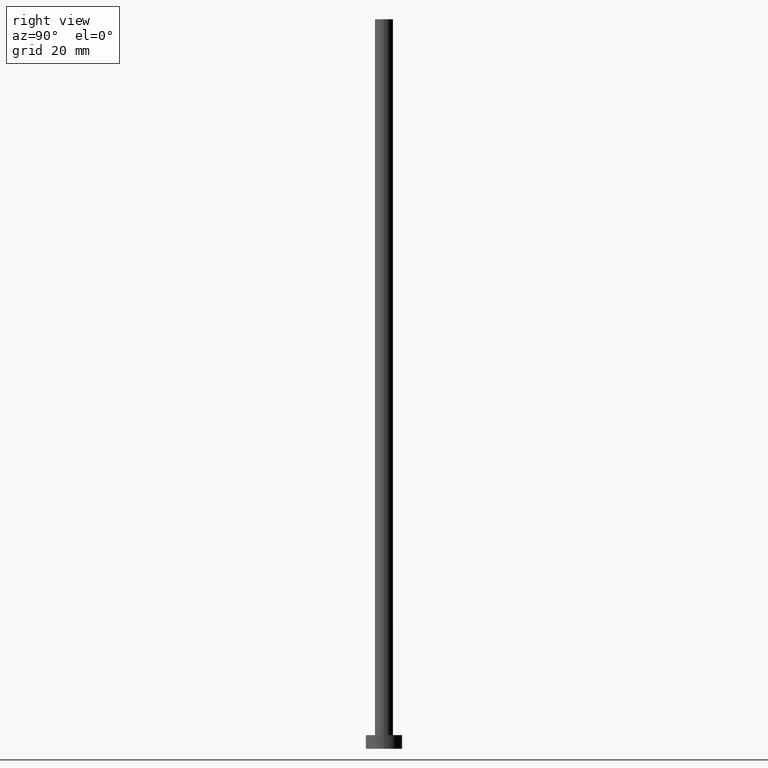
[diagram: clean part render]
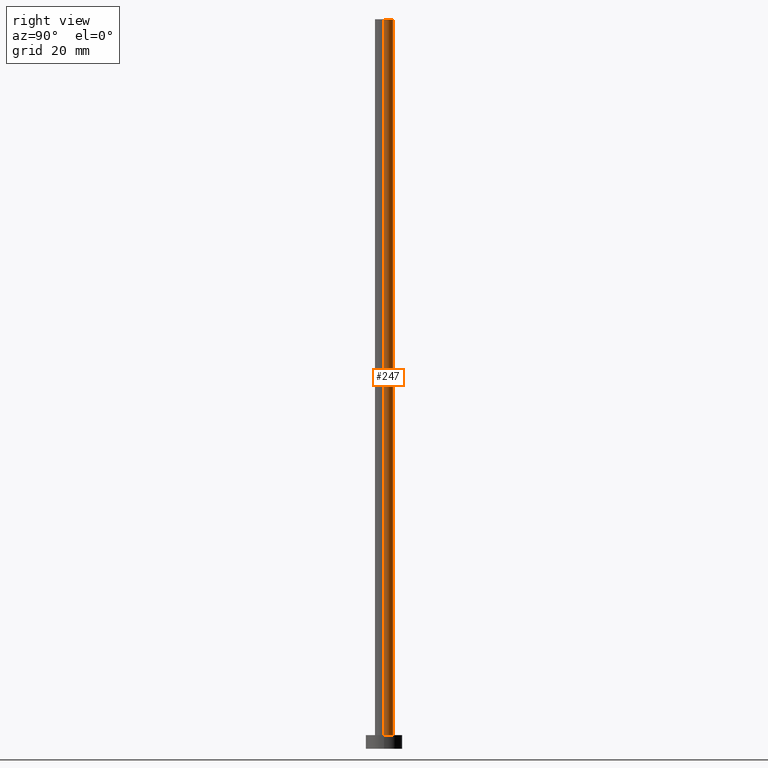
[diagram: same view with one face highlighted and labeled with its STEP entity id]
A machine part, right view. The second image highlights one B-rep face of the part: STEP entity #247.
In plain terms, the highlighted cylindrical surface (edge-blend (fillet) strip) has radius 2 mm, axis along (-0, -0, -1).
Its self-contained STEP definition (entity closure, byte-faithful):
#2 = AXIS2_PLACEMENT_3D ( 'NONE', #165, #85, #160 ) ;
#4 = AXIS2_PLACEMENT_3D ( 'NONE', #68, #56, #157 ) ;
#6 = ORIENTED_EDGE ( 'NONE', *, *, #110, .F. ) ;
#7 = DIRECTION ( 'NONE',  ( 1.000000000000000000, 0.000000000000000000, 0.000000000000000000 ) ) ;
#18 = VERTEX_POINT ( 'NONE', #177 ) ;
#20 = ORIENTED_EDGE ( 'NONE', *, *, #80, .T. ) ;
#24 = CARTESIAN_POINT ( 'NONE',  ( 2.000000000000000000, 2.449293598294706414E-16, 160.0000000000000000 ) ) ;
#25 = LINE ( 'NONE', #113, #216 ) ;
#55 = FACE_OUTER_BOUND ( 'NONE', #170, .T. ) ;
#56 = DIRECTION ( 'NONE',  ( -0.000000000000000000, -0.000000000000000000, -1.000000000000000000 ) ) ;
#68 = CARTESIAN_POINT ( 'NONE',  ( 0.000000000000000000, 0.000000000000000000, 160.0000000000000000 ) ) ;
#80 = EDGE_CURVE ( 'NONE', #175, #234, #128, .T. ) ;
#85 = DIRECTION ( 'NONE',  ( 0.000000000000000000, 0.000000000000000000, 1.000000000000000000 ) ) ;
#87 = DIRECTION ( 'NONE',  ( 0.000000000000000000, 0.000000000000000000, 1.000000000000000000 ) ) ;
#89 = VERTEX_POINT ( 'NONE', #190 ) ;
#102 = DIRECTION ( 'NONE',  ( -0.000000000000000000, -0.000000000000000000, -1.000000000000000000 ) ) ;
#106 = DIRECTION ( 'NONE',  ( -0.000000000000000000, -0.000000000000000000, -1.000000000000000000 ) ) ;
#107 = ORIENTED_EDGE ( 'NONE', *, *, #145, .F. ) ;
#110 = EDGE_CURVE ( 'NONE', #89, #18, #227, .T. ) ;
#113 = CARTESIAN_POINT ( 'NONE',  ( -2.000000000000000000, 0.000000000000000000, 160.0000000000000000 ) ) ;
#122 = CARTESIAN_POINT ( 'NONE',  ( -2.000000000000000000, 0.000000000000000000, 3.000000000000000000 ) ) ;
#123 = CYLINDRICAL_SURFACE ( 'NONE', #4, 2.000000000000000000 ) ;
#125 = EDGE_CURVE ( 'NONE', #89, #175, #202, .T. ) ;
#128 = CIRCLE ( 'NONE', #164, 2.000000000000000000 ) ;
#145 = EDGE_CURVE ( 'NONE', #18, #234, #25, .T. ) ;
#157 = DIRECTION ( 'NONE',  ( -1.000000000000000000, 0.000000000000000000, 0.000000000000000000 ) ) ;
#160 = DIRECTION ( 'NONE',  ( 1.000000000000000000, 0.000000000000000000, 0.000000000000000000 ) ) ;
#164 = AXIS2_PLACEMENT_3D ( 'NONE', #193, #87, #7 ) ;
#165 = CARTESIAN_POINT ( 'NONE',  ( 0.000000000000000000, 0.000000000000000000, 160.0000000000000000 ) ) ;
#166 = ORIENTED_EDGE ( 'NONE', *, *, #125, .T. ) ;
#170 = EDGE_LOOP ( 'NONE', ( #6, #166, #20, #107 ) ) ;
#175 = VERTEX_POINT ( 'NONE', #184 ) ;
#177 = CARTESIAN_POINT ( 'NONE',  ( -2.000000000000000000, 0.000000000000000000, 160.0000000000000000 ) ) ;
#184 = CARTESIAN_POINT ( 'NONE',  ( 2.000000000000000000, 2.449293598294706414E-16, 3.000000000000000000 ) ) ;
#190 = CARTESIAN_POINT ( 'NONE',  ( 2.000000000000000000, 2.449293598294706414E-16, 160.0000000000000000 ) ) ;
#193 = CARTESIAN_POINT ( 'NONE',  ( 0.000000000000000000, 0.000000000000000000, 3.000000000000000000 ) ) ;
#197 = VECTOR ( 'NONE', #102, 1000.000000000000000 ) ;
#202 = LINE ( 'NONE', #24, #197 ) ;
#216 = VECTOR ( 'NONE', #106, 1000.000000000000000 ) ;
#227 = CIRCLE ( 'NONE', #2, 2.000000000000000000 ) ;
#234 = VERTEX_POINT ( 'NONE', #122 ) ;
#247 = ADVANCED_FACE ( 'NONE', ( #55 ), #123, .T. ) ;